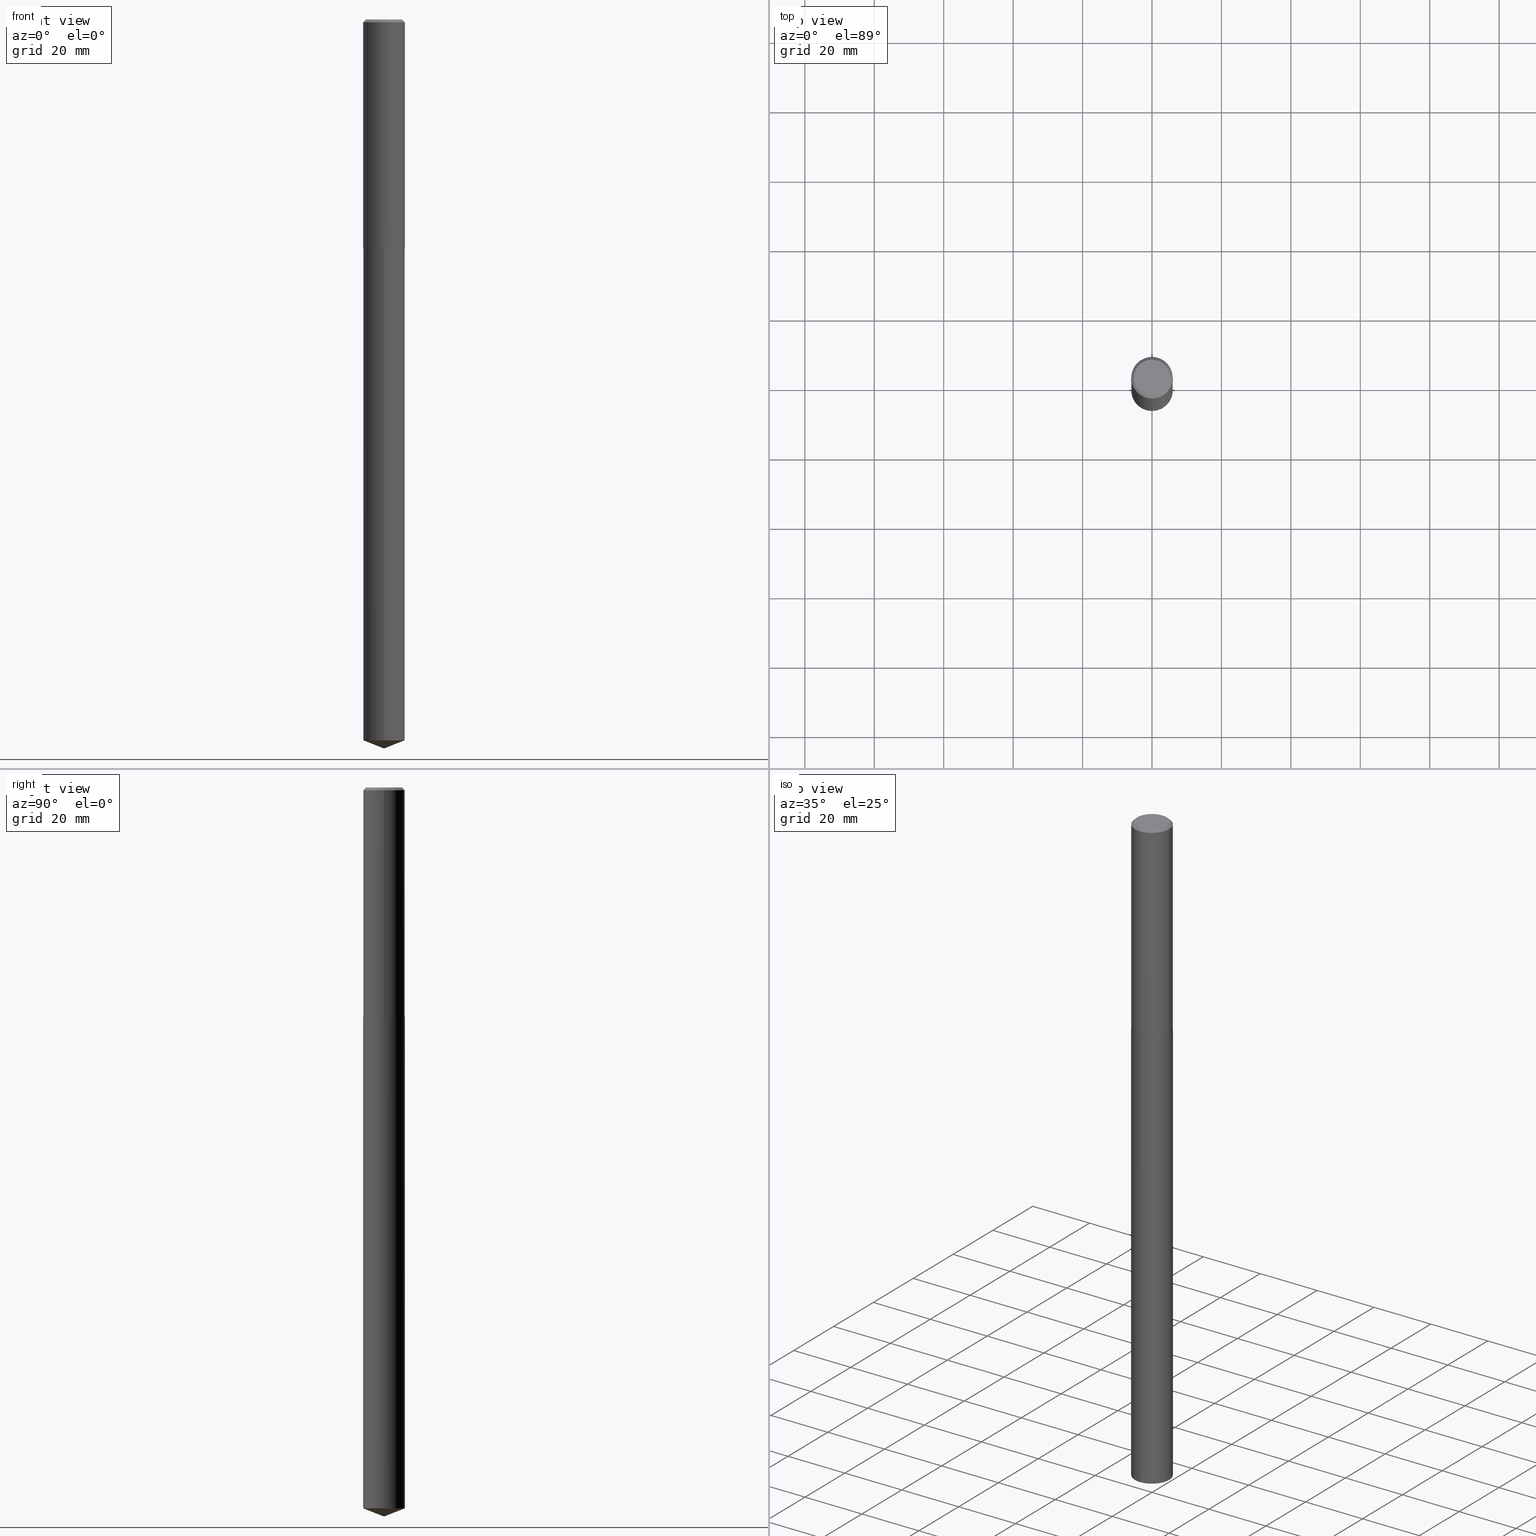
[diagram: canonical four-view strip — front | top / right | iso, engineering-drawing reading convention]
A machine part, canonical four-view strip (front | top / right | iso — engineering-drawing reading convention). The complete STEP part file that produces these views, byte-faithful:
ISO-10303-21;
HEADER;
FILE_DESCRIPTION (( 'STEP AP203' ),
    '1' );
FILE_NAME ('66799.STEP',
    '2024-04-23T12:51:47',
    ( '' ),
    ( '' ),
    'SwSTEP 2.0',
    'SolidWorks 2023',
    '' );
FILE_SCHEMA (( 'CONFIG_CONTROL_DESIGN' ));
ENDSEC;

DATA;
#1 = ORIENTED_EDGE ( 'NONE', *, *, #39, .F. ) ;
#2 = ORIENTED_EDGE ( 'NONE', *, *, #11, .T. ) ;
#3 = AXIS2_PLACEMENT_3D ( 'NONE', #315, #17, #16 ) ;
#4 = FACE_OUTER_BOUND ( 'NONE', #295, .T. ) ;
#5 = VERTEX_POINT ( 'NONE', #192 ) ;
#6 = ADVANCED_FACE ( 'NONE', ( #246 ), #37, .T. ) ;
#7 = DIRECTION ( 'NONE',  ( 1.000000000000000000, -6.982962677686266711E-15, 0.000000000000000000 ) ) ;
#8 = DIRECTION ( 'NONE',  ( 2.445468806185136597E-29, -3.491481338843145583E-15, -1.000000000000000000 ) ) ;
#9 = AXIS2_PLACEMENT_3D ( 'NONE', #100, #135, #102 ) ;
#10 = CARTESIAN_POINT ( 'NONE',  ( -7.606282247633711142E-28, 1.085870874670384931E-13, 31.10207874015748430 ) ) ;
#11 = EDGE_CURVE ( 'NONE', #272, #207, #186, .T. ) ;
#12 = CARTESIAN_POINT ( 'NONE',  ( 6.354795239752696204E-29, -9.072963407117799646E-15, -2.598599999999999799 ) ) ;
#13 = PLANE ( 'NONE',  #326 ) ;
#14 = AXIS2_PLACEMENT_3D ( 'NONE', #161, #221, #77 ) ;
#15 = AXIS2_PLACEMENT_3D ( 'NONE', #154, #119, #210 ) ;
#16 = DIRECTION ( 'NONE',  ( 1.000000000000000000, -6.982962677686266711E-15, 0.000000000000000000 ) ) ;
#17 = DIRECTION ( 'NONE',  ( -2.445468806185136597E-29, 3.491481338843145583E-15, 1.000000000000000000 ) ) ;
#18 = PRODUCT_DEFINITION_SHAPE ( 'NONE', 'NONE',  #64 ) ;
#19 = DIRECTION ( 'NONE',  ( 2.445468806185136597E-29, -3.491481338843145583E-15, -1.000000000000000000 ) ) ;
#20 = DIRECTION ( 'NONE',  ( -6.982962677686265922E-15, -1.000000000000000000, 4.626330217890369336E-15 ) ) ;
#21 = CONICAL_SURFACE ( 'NONE', #98, 0.2362000000000003264, 0.7853981633971751641 ) ;
#22 = LOCAL_TIME ( 8, 51, 47.00000000000000000, #276 ) ;
#23 = EDGE_CURVE ( 'NONE', #63, #5, #111, .T. ) ;
#24 = CARTESIAN_POINT ( 'NONE',  ( 6.354795239752696204E-29, -9.072963407117799646E-15, -2.598599999999999799 ) ) ;
#25 = CIRCLE ( 'NONE', #3, 0.2361999999999999933 ) ;
#26 = ORIENTED_EDGE ( 'NONE', *, *, #338, .T. ) ;
#27 = APPROVAL_DATE_TIME ( #243, #311 ) ;
#28 = ORIENTED_EDGE ( 'NONE', *, *, #250, .F. ) ;
#29 = ORIENTED_EDGE ( 'NONE', *, *, #165, .T. ) ;
#30 = DIRECTION ( 'NONE',  ( -6.982962677686266711E-15, -1.000000000000000000, 3.498627837350013689E-15 ) ) ;
#31 = VERTEX_POINT ( 'NONE', #164 ) ;
#32 = VECTOR ( 'NONE', #285, 39.37007874015748143 ) ;
#33 = CC_DESIGN_DATE_AND_TIME_ASSIGNMENT ( #328, #60, ( #64 ) ) ;
#34 = PERSON_AND_ORGANIZATION_ROLE ( 'design_supplier' ) ;
#35 = ORIENTED_EDGE ( 'NONE', *, *, #23, .T. ) ;
#36 = PERSON_AND_ORGANIZATION ( #256, #342 ) ;
#37 = CYLINDRICAL_SURFACE ( 'NONE', #209, 0.2362000000000001598 ) ;
#38 = CARTESIAN_POINT ( 'NONE',  ( 0.000000000000000000, 0.000000000000000000, 0.000000000000000000 ) ) ;
#39 = EDGE_CURVE ( 'NONE', #310, #272, #223, .T. ) ;
#40 = CLOSED_SHELL ( 'NONE', ( #93, #50, #314, #82, #180, #6, #321, #389 ) ) ;
#41 = LOCAL_TIME ( 8, 51, 47.00000000000000000, #247 ) ;
#42 = CARTESIAN_POINT ( 'NONE',  ( -0.2362000000000003264, -7.392915724583017804E-15, -2.598099999999999632 ) ) ;
#43 = DIRECTION ( 'NONE',  ( -2.445577382923198506E-29, 3.491325850774436813E-15, 1.000000000000000000 ) ) ;
#44 = CARTESIAN_POINT ( 'NONE',  ( 6.353572505349603403E-29, -9.071217666448377353E-15, -2.598099999999999632 ) ) ;
#45 = VECTOR ( 'NONE', #193, 39.37007874015748143 ) ;
#46 = CC_DESIGN_SECURITY_CLASSIFICATION ( #302, ( #293 ) ) ;
#47 = DIRECTION ( 'NONE',  ( -2.445468806185136597E-29, 3.491481338843145583E-15, 1.000000000000000000 ) ) ;
#48 = CARTESIAN_POINT ( 'NONE',  ( -0.2049499999999999933, 1.485712596711223663E-15, 4.818985154634640807E-18 ) ) ;
#49 = DIRECTION ( 'NONE',  ( -2.445577382923198506E-29, 3.491325850774436813E-15, 1.000000000000000000 ) ) ;
#50 = ADVANCED_FACE ( 'NONE', ( #218 ), #308, .T. ) ;
#51 = CARTESIAN_POINT ( 'NONE',  ( 7.642090019328603538E-31, -1.091087918388490390E-16, -0.03125000000000021511 ) ) ;
#52 = CIRCLE ( 'NONE', #361, 0.2362000000000003264 ) ;
#53 = DESIGN_CONTEXT ( 'detailed design', #89, 'design' ) ;
#54 = DIRECTION ( 'NONE',  ( 2.438088387897960049E-29, -3.491481338843145188E-15, -1.000000000000000000 ) ) ;
#55 = ORIENTED_EDGE ( 'NONE', *, *, #286, .F. ) ;
#56 = APPROVAL_ROLE ( '' ) ;
#57 = CLOSED_SHELL ( 'NONE', ( #204, #147, #358, #106, #329 ) ) ;
#58 = ORIENTED_EDGE ( 'NONE', *, *, #23, .F. ) ;
#59 =( GEOMETRIC_REPRESENTATION_CONTEXT ( 3 ) GLOBAL_UNCERTAINTY_ASSIGNED_CONTEXT ( ( #69 ) ) GLOBAL_UNIT_ASSIGNED_CONTEXT ( ( #355, #176, #322 ) ) REPRESENTATION_CONTEXT ( 'NONE', 'WORKASPACE' ) );
#60 = DATE_TIME_ROLE ( 'creation_date' ) ;
#61 = EDGE_LOOP ( 'NONE', ( #360, #94, #242, #1 ) ) ;
#62 = PERSON_AND_ORGANIZATION ( #256, #342 ) ;
#63 = VERTEX_POINT ( 'NONE', #166 ) ;
#64 = PRODUCT_DEFINITION ( 'UNKNOWN', '', #293, #53 ) ;
#65 = ORIENTED_EDGE ( 'NONE', *, *, #383, .T. ) ;
#66 = VECTOR ( 'NONE', #351, 39.37007874015748143 ) ;
#67 = APPROVAL_PERSON_ORGANIZATION ( #362, #353, #182 ) ;
#68 = SECURITY_CLASSIFICATION_LEVEL ( 'unclassified' ) ;
#69 = UNCERTAINTY_MEASURE_WITH_UNIT (LENGTH_MEASURE( 1.000000000000000082E-05 ), #355, 'distance_accuracy_value', 'NONE');
#70 = CARTESIAN_POINT ( 'NONE',  ( 7.642090019328603538E-31, -1.091087918388490390E-16, -0.03125000000000021511 ) ) ;
#71 = EDGE_CURVE ( 'NONE', #185, #265, #136, .T. ) ;
#72 = DATE_TIME_ROLE ( 'classification_date' ) ;
#73 = DIRECTION ( 'NONE',  ( -2.438088387897960049E-29, 3.491481338843145188E-15, 1.000000000000000000 ) ) ;
#74 = CYLINDRICAL_SURFACE ( 'NONE', #271, 0.2361999999999999933 ) ;
#75 = AXIS2_PLACEMENT_3D ( 'NONE', #24, #382, #107 ) ;
#76 = DIRECTION ( 'NONE',  ( -2.445468806185136597E-29, 3.491481338843145583E-15, 1.000000000000000000 ) ) ;
#77 = DIRECTION ( 'NONE',  ( 1.000000000000000000, -6.982962677686266711E-15, 4.876176775795936353E-29 ) ) ;
#78 = CC_DESIGN_PERSON_AND_ORGANIZATION_ASSIGNMENT ( #62, #116, ( #381 ) ) ;
#79 = CARTESIAN_POINT ( 'NONE',  ( -0.2362000000000001598, 1.678301941865357775E-15, -1.161852468318209598E-29 ) ) ;
#80 = LOCAL_TIME ( 8, 51, 47.00000000000000000, #296 ) ;
#81 = CARTESIAN_POINT ( 'NONE',  ( -1.178467787315321149E-46, 1.682539673960460649E-32, 4.818985154644839761E-18 ) ) ;
#82 = ADVANCED_FACE ( 'NONE', ( #280 ), #13, .F. ) ;
#83 = DIRECTION ( 'NONE',  ( 1.000000000000000000, -6.982962677686263555E-15, 0.000000000000000000 ) ) ;
#84 = CARTESIAN_POINT ( 'NONE',  ( 6.353572505349603403E-29, -9.071217666448377353E-15, -2.598099999999999632 ) ) ;
#85 = CARTESIAN_POINT ( 'NONE',  ( 2.022003875021026459E-28, -2.886628213420304436E-14, -8.268000000000000682 ) ) ;
#86 = ORIENTED_EDGE ( 'NONE', *, *, #383, .F. ) ;
#87 = EDGE_LOOP ( 'NONE', ( #269, #365, #96, #86 ) ) ;
#88 = COORDINATED_UNIVERSAL_TIME_OFFSET ( 5, 0, .BEHIND. ) ;
#89 = APPLICATION_CONTEXT ( 'configuration controlled 3d designs of mechanical parts and assemblies' ) ;
#90 = CIRCLE ( 'NONE', #233, 0.2357000000000004369 ) ;
#91 = ORIENTED_EDGE ( 'NONE', *, *, #270, .T. ) ;
#92 = APPROVAL_STATUS ( 'not_yet_approved' ) ;
#93 = ADVANCED_FACE ( 'NONE', ( #163 ), #224, .T. ) ;
#94 = ORIENTED_EDGE ( 'NONE', *, *, #220, .T. ) ;
#95 = APPROVAL_DATE_TIME ( #299, #353 ) ;
#96 = ORIENTED_EDGE ( 'NONE', *, *, #344, .T. ) ;
#97 = DIRECTION ( 'NONE',  ( -6.982962677686265922E-15, -1.000000000000000000, 4.626330217890369336E-15 ) ) ;
#98 = AXIS2_PLACEMENT_3D ( 'NONE', #44, #47, #83 ) ;
#99 = LOCAL_TIME ( 8, 51, 47.00000000000000000, #364 ) ;
#100 = CARTESIAN_POINT ( 'NONE',  ( 1.999221108897321029E-28, -2.854184745250146313E-14, -8.174958345659751657 ) ) ;
#101 = SHAPE_DEFINITION_REPRESENTATION ( #18, #304 ) ;
#102 = DIRECTION ( 'NONE',  ( -6.982962677686265922E-15, -1.000000000000000000, 4.626330217890369336E-15 ) ) ;
#103 = DIRECTION ( 'NONE',  ( -2.445468806185136597E-29, 3.491481338843145583E-15, 1.000000000000000000 ) ) ;
#104 = CIRCLE ( 'NONE', #125, 0.2049499999999999933 ) ;
#105 = CARTESIAN_POINT ( 'NONE',  ( -0.2361999999999999933, 1.540266992630647030E-15, -0.03125000000000021511 ) ) ;
#106 = ADVANCED_FACE ( 'NONE', ( #279 ), #74, .T. ) ;
#107 = DIRECTION ( 'NONE',  ( -6.982962677686265922E-15, -1.000000000000000000, 4.626330217890369336E-15 ) ) ;
#108 = ORIENTED_EDGE ( 'NONE', *, *, #220, .F. ) ;
#109 = CARTESIAN_POINT ( 'NONE',  ( -1.178467787315321149E-46, 1.682539673960460649E-32, 4.818985154644839761E-18 ) ) ;
#110 = EDGE_CURVE ( 'NONE', #310, #265, #52, .T. ) ;
#111 = CIRCLE ( 'NONE', #173, 0.2361999999999999933 ) ;
#112 = LOCAL_TIME ( 8, 51, 47.00000000000000000, #88 ) ;
#113 = CARTESIAN_POINT ( 'NONE',  ( -1.649375784469295957E-15, -0.2362000000000285538, -8.174958345659749881 ) ) ;
#114 = FACE_OUTER_BOUND ( 'NONE', #177, .T. ) ;
#115 = DIRECTION ( 'NONE',  ( -2.445468806185136597E-29, 3.491481338843145583E-15, 1.000000000000000000 ) ) ;
#116 = PERSON_AND_ORGANIZATION_ROLE ( 'design_owner' ) ;
#117 = PRODUCT_RELATED_PRODUCT_CATEGORY ( 'detail', '', ( #381 ) ) ;
#118 = ORIENTED_EDGE ( 'NONE', *, *, #194, .T. ) ;
#119 = DIRECTION ( 'NONE',  ( -2.445468806185136597E-29, 3.491481338843145583E-15, 1.000000000000000000 ) ) ;
#120 = ORIENTED_EDGE ( 'NONE', *, *, #261, .F. ) ;
#121 = LINE ( 'NONE', #387, #348 ) ;
#122 = ORIENTED_EDGE ( 'NONE', *, *, #153, .T. ) ;
#123 = EDGE_CURVE ( 'NONE', #185, #330, #90, .T. ) ;
#124 = PERSON_AND_ORGANIZATION ( #256, #342 ) ;
#125 = AXIS2_PLACEMENT_3D ( 'NONE', #109, #287, #227 ) ;
#126 = EDGE_LOOP ( 'NONE', ( #183, #29, #2, #356 ) ) ;
#127 = CARTESIAN_POINT ( 'NONE',  ( 0.000000000000000000, 0.000000000000000000, 0.000000000000000000 ) ) ;
#128 = VERTEX_POINT ( 'NONE', #343 ) ;
#129 = PERSON_AND_ORGANIZATION ( #256, #342 ) ;
#130 = CARTESIAN_POINT ( 'NONE',  ( 6.354795239752696204E-29, -9.072963407117799646E-15, -2.598599999999999799 ) ) ;
#131 = DATE_AND_TIME ( #190, #41 ) ;
#132 = DIRECTION ( 'NONE',  ( -2.445468806185136597E-29, 3.491481338843145583E-15, 1.000000000000000000 ) ) ;
#133 = CIRCLE ( 'NONE', #9, 0.2361999999999999933 ) ;
#134 = AXIS2_PLACEMENT_3D ( 'NONE', #320, #266, #30 ) ;
#135 = DIRECTION ( 'NONE',  ( -2.445577382923198506E-29, 3.491325850774436813E-15, 1.000000000000000000 ) ) ;
#136 = LINE ( 'NONE', #42, #277 ) ;
#137 = EDGE_CURVE ( 'NONE', #291, #207, #249, .T. ) ;
#138 = DIRECTION ( 'NONE',  ( 1.000000000000000000, -6.982962677686265922E-15, 4.876176775795935793E-29 ) ) ;
#139 = AXIS2_PLACEMENT_3D ( 'NONE', #84, #203, #260 ) ;
#140 = CARTESIAN_POINT ( 'NONE',  ( 0.2361999999999999933, -1.758484576308345231E-15, -0.03125000000000021511 ) ) ;
#141 = DIRECTION ( 'NONE',  ( -2.445577382923198787E-29, 3.491325850774436813E-15, 1.000000000000000000 ) ) ;
#142 = CC_DESIGN_PERSON_AND_ORGANIZATION_ASSIGNMENT ( #252, #34, ( #293 ) ) ;
#143 = FACE_OUTER_BOUND ( 'NONE', #297, .T. ) ;
#144 = VECTOR ( 'NONE', #189, 39.37007874015748143 ) ;
#145 = DIRECTION ( 'NONE',  ( -2.445468806185136597E-29, 3.491481338843145583E-15, 1.000000000000000000 ) ) ;
#146 = DIRECTION ( 'NONE',  ( 6.982962677686265922E-15, 1.000000000000000000, -3.491325850774436813E-15 ) ) ;
#147 = ADVANCED_FACE ( 'NONE', ( #369 ), #307, .T. ) ;
#148 = ORIENTED_EDGE ( 'NONE', *, *, #194, .F. ) ;
#149 = PERSON_AND_ORGANIZATION ( #256, #342 ) ;
#150 = EDGE_LOOP ( 'NONE', ( #267, #122, #26, #148 ) ) ;
#151 = PERSON_AND_ORGANIZATION_ROLE ( 'creator' ) ;
#152 = EDGE_LOOP ( 'NONE', ( #323, #235 ) ) ;
#153 = EDGE_CURVE ( 'NONE', #187, #237, #133, .T. ) ;
#154 = CARTESIAN_POINT ( 'NONE',  ( 6.353572505349603403E-29, -9.071217666448377353E-15, -2.598099999999999632 ) ) ;
#155 = ORIENTED_EDGE ( 'NONE', *, *, #371, .T. ) ;
#156 = DIRECTION ( 'NONE',  ( -2.445577382923198787E-29, 3.491325850774436813E-15, 1.000000000000000000 ) ) ;
#157 = AXIS2_PLACEMENT_3D ( 'NONE', #313, #145, #201 ) ;
#158 = ORIENTED_EDGE ( 'NONE', *, *, #261, .T. ) ;
#159 = APPROVAL_PERSON_ORGANIZATION ( #149, #311, #56 ) ;
#160 = ORIENTED_EDGE ( 'NONE', *, *, #250, .T. ) ;
#161 = CARTESIAN_POINT ( 'NONE',  ( 0.000000000000000000, 0.000000000000000000, 0.000000000000000000 ) ) ;
#162 = PERSON_AND_ORGANIZATION_ROLE ( 'classification_officer' ) ;
#163 = FACE_OUTER_BOUND ( 'NONE', #126, .T. ) ;
#164 = CARTESIAN_POINT ( 'NONE',  ( 2.022003380200900864E-28, -2.886628213420304436E-14, -8.268000000000000682 ) ) ;
#165 = EDGE_CURVE ( 'NONE', #128, #272, #340, .T. ) ;
#166 = CARTESIAN_POINT ( 'NONE',  ( -1.649375784469432430E-15, -0.2362000000000090694, -2.598599999999998911 ) ) ;
#167 = CARTESIAN_POINT ( 'NONE',  ( -0.2361999999999999933, -2.911861287278254072E-15, -0.03125000000000021511 ) ) ;
#168 = AXIS2_PLACEMENT_3D ( 'NONE', #372, #305, #7 ) ;
#169 = AXIS2_PLACEMENT_3D ( 'NONE', #380, #289, #146 ) ;
#170 = CARTESIAN_POINT ( 'NONE',  ( 2.021946950698595133E-28, -2.886709023679374212E-14, -8.268000000000000682 ) ) ;
#171 = DIRECTION ( 'NONE',  ( -6.497071151882117470E-15, -0.9304175679820243516, 0.3665012267242979127 ) ) ;
#172 = CARTESIAN_POINT ( 'NONE',  ( -0.2357000000000004369, -7.395564951757128216E-15, -2.598599999999999799 ) ) ;
#173 = AXIS2_PLACEMENT_3D ( 'NONE', #130, #43, #97 ) ;
#174 = DIRECTION ( 'NONE',  ( -1.000000000000000000, 6.982962677686266711E-15, 0.000000000000000000 ) ) ;
#175 = CC_DESIGN_PERSON_AND_ORGANIZATION_ASSIGNMENT ( #124, #151, ( #64 ) ) ;
#176 =( NAMED_UNIT ( * ) PLANE_ANGLE_UNIT ( ) SI_UNIT ( $, .RADIAN. ) );
#177 = EDGE_LOOP ( 'NONE', ( #91, #208, #245, #213 ) ) ;
#178 = CONICAL_SURFACE ( 'NONE', #134, 99.94676754583970535, 1.195550537616118625 ) ;
#179 = CALENDAR_DATE ( 2024, 23, 4 ) ;
#180 = ADVANCED_FACE ( 'NONE', ( #312 ), #21, .T. ) ;
#181 = ORIENTED_EDGE ( 'NONE', *, *, #244, .F. ) ;
#182 = APPROVAL_ROLE ( '' ) ;
#183 = ORIENTED_EDGE ( 'NONE', *, *, #230, .F. ) ;
#184 = CALENDAR_DATE ( 2024, 23, 4 ) ;
#185 = VERTEX_POINT ( 'NONE', #172 ) ;
#186 = CIRCLE ( 'NONE', #168, 0.2361999999999999933 ) ;
#187 = VERTEX_POINT ( 'NONE', #379 ) ;
#188 = CC_DESIGN_PERSON_AND_ORGANIZATION_ASSIGNMENT ( #129, #162, ( #302 ) ) ;
#189 = DIRECTION ( 'NONE',  ( -0.7071067811865451302, 2.468850131082231817E-15, -0.7071067811865499042 ) ) ;
#190 = CALENDAR_DATE ( 2024, 23, 4 ) ;
#191 = DIMENSIONAL_EXPONENTS ( 1.000000000000000000, 0.000000000000000000, 0.000000000000000000, 0.000000000000000000, 0.000000000000000000, 0.000000000000000000, 0.000000000000000000 ) ;
#192 = CARTESIAN_POINT ( 'NONE',  ( 1.678301941865557554E-15, 0.2361999999999909450, -2.598600000000001131 ) ) ;
#193 = DIRECTION ( 'NONE',  ( -2.445468806185136877E-29, 3.491481338843145188E-15, 1.000000000000000000 ) ) ;
#194 = EDGE_CURVE ( 'NONE', #5, #63, #240, .T. ) ;
#195 = AXIS2_PLACEMENT_3D ( 'NONE', #10, #196, #225 ) ;
#196 = DIRECTION ( 'NONE',  ( -2.445577382923198506E-29, 3.491325850774436813E-15, 1.000000000000000000 ) ) ;
#197 = DIRECTION ( 'NONE',  ( 0.7071067811865451302, -7.319954787623248157E-15, -0.7071067811865499042 ) ) ;
#198 = LINE ( 'NONE', #284, #199 ) ;
#199 = VECTOR ( 'NONE', #141, 39.37007874015748143 ) ;
#200 = AXIS2_PLACEMENT_3D ( 'NONE', #127, #359, #241 ) ;
#201 = DIRECTION ( 'NONE',  ( 1.000000000000000000, -6.982962677686269866E-15, 0.000000000000000000 ) ) ;
#202 = LINE ( 'NONE', #79, #66 ) ;
#203 = DIRECTION ( 'NONE',  ( -2.445468806185136597E-29, 3.491481338843145583E-15, 1.000000000000000000 ) ) ;
#204 = ADVANCED_FACE ( 'NONE', ( #384 ), #226, .T. ) ;
#205 = AXIS2_PLACEMENT_3D ( 'NONE', #316, #49, #282 ) ;
#206 = FACE_OUTER_BOUND ( 'NONE', #363, .T. ) ;
#207 = VERTEX_POINT ( 'NONE', #167 ) ;
#208 = ORIENTED_EDGE ( 'NONE', *, *, #71, .T. ) ;
#209 = AXIS2_PLACEMENT_3D ( 'NONE', #38, #132, #274 ) ;
#210 = DIRECTION ( 'NONE',  ( 1.000000000000000000, -6.982962677686263555E-15, 0.000000000000000000 ) ) ;
#211 = ORIENTED_EDGE ( 'NONE', *, *, #230, .T. ) ;
#212 = PLANE ( 'NONE',  #335 ) ;
#213 = ORIENTED_EDGE ( 'NONE', *, *, #344, .F. ) ;
#214 = PERSON_AND_ORGANIZATION ( #256, #342 ) ;
#215 = ORIENTED_EDGE ( 'NONE', *, *, #153, .F. ) ;
#216 = APPROVAL ( #273, 'UNSPECIFIED' ) ;
#217 = APPROVAL_PERSON_ORGANIZATION ( #36, #216, #254 ) ;
#218 = FACE_OUTER_BOUND ( 'NONE', #61, .T. ) ;
#219 = CARTESIAN_POINT ( 'NONE',  ( 6.353572505349603403E-29, -9.071217666448377353E-15, -2.598099999999999632 ) ) ;
#220 = EDGE_CURVE ( 'NONE', #265, #207, #202, .T. ) ;
#221 = DIRECTION ( 'NONE',  ( -2.445468806185136597E-29, 3.491481338843145583E-15, 1.000000000000000000 ) ) ;
#222 = DATE_AND_TIME ( #309, #22 ) ;
#223 = LINE ( 'NONE', #306, #45 ) ;
#224 = CONICAL_SURFACE ( 'NONE', #228, 0.2361999999999999933, 0.7853981633974449483 ) ;
#225 = DIRECTION ( 'NONE',  ( -6.982962677686266711E-15, -1.000000000000000000, 3.498627837350013689E-15 ) ) ;
#226 = CYLINDRICAL_SURFACE ( 'NONE', #205, 0.2361999999999999933 ) ;
#227 = DIRECTION ( 'NONE',  ( 1.000000000000000000, -6.982962677686266711E-15, 4.876118559169178830E-29 ) ) ;
#228 = AXIS2_PLACEMENT_3D ( 'NONE', #70, #8, #376 ) ;
#229 = DIRECTION ( 'NONE',  ( 1.000000000000000000, -6.982962677686266711E-15, 4.876118559169178830E-29 ) ) ;
#230 = EDGE_CURVE ( 'NONE', #128, #291, #104, .T. ) ;
#231 = CARTESIAN_POINT ( 'NONE',  ( 1.999221108897321029E-28, -2.854184745250146313E-14, -8.174958345659751657 ) ) ;
#232 = DIRECTION ( 'NONE',  ( 0.7071067811863543939, -2.468850131080234027E-15, 0.7071067811867406405 ) ) ;
#233 = AXIS2_PLACEMENT_3D ( 'NONE', #255, #76, #275 ) ;
#234 =( LENGTH_UNIT ( ) NAMED_UNIT ( * ) SI_UNIT ( $, .METRE. ) );
#235 = ORIENTED_EDGE ( 'NONE', *, *, #123, .F. ) ;
#236 = DIRECTION ( 'NONE',  ( -1.000000000000000000, 6.982962677686265922E-15, -4.876176775795935793E-29 ) ) ;
#237 = VERTEX_POINT ( 'NONE', #113 ) ;
#238 = MANIFOLD_SOLID_BREP ( 'Body-Move/Copy2[2]', #40 ) ;
#239 = ORIENTED_EDGE ( 'NONE', *, *, #286, .T. ) ;
#240 = CIRCLE ( 'NONE', #75, 0.2361999999999999933 ) ;
#241 = DIRECTION ( 'NONE',  ( 1.000000000000000000, 0.000000000000000000, 0.000000000000000000 ) ) ;
#242 = ORIENTED_EDGE ( 'NONE', *, *, #11, .F. ) ;
#243 = DATE_AND_TIME ( #179, #112 ) ;
#244 = EDGE_CURVE ( 'NONE', #237, #187, #248, .T. ) ;
#245 = ORIENTED_EDGE ( 'NONE', *, *, #110, .F. ) ;
#246 = FACE_OUTER_BOUND ( 'NONE', #300, .T. ) ;
#247 = COORDINATED_UNIVERSAL_TIME_OFFSET ( 5, 0, .BEHIND. ) ;
#248 = CIRCLE ( 'NONE', #318, 0.2361999999999999933 ) ;
#249 = LINE ( 'NONE', #105, #144 ) ;
#250 = EDGE_CURVE ( 'NONE', #291, #128, #341, .T. ) ;
#251 = ORIENTED_EDGE ( 'NONE', *, *, #298, .F. ) ;
#252 = PERSON_AND_ORGANIZATION ( #256, #342 ) ;
#253 = DIRECTION ( 'NONE',  ( -2.445577382923198506E-29, 3.491325850774436813E-15, 1.000000000000000000 ) ) ;
#254 = APPROVAL_ROLE ( '' ) ;
#255 = CARTESIAN_POINT ( 'NONE',  ( 6.354795239752696204E-29, -9.072963407117799646E-15, -2.598599999999999799 ) ) ;
#256 = PERSON ( 'UNSPECIFIED', 'UNSPECIFIED', 'UNSPECIFIED', ('UNSPECIFIED'), ('UNSPECIFIED'), ('UNSPECIFIED') ) ;
#257 = FACE_OUTER_BOUND ( 'NONE', #357, .T. ) ;
#258 = CC_DESIGN_PERSON_AND_ORGANIZATION_ASSIGNMENT ( #214, #339, ( #293 ) ) ;
#259 = LINE ( 'NONE', #170, #374 ) ;
#260 = DIRECTION ( 'NONE',  ( 1.000000000000000000, -6.982962677686263555E-15, 0.000000000000000000 ) ) ;
#261 = EDGE_CURVE ( 'NONE', #207, #272, #25, .T. ) ;
#262 = CARTESIAN_POINT ( 'NONE',  ( -0.2362000000000003264, -7.392915724583017804E-15, -2.598099999999999632 ) ) ;
#263 = LINE ( 'NONE', #350, #292 ) ;
#264 = ORIENTED_EDGE ( 'NONE', *, *, #298, .T. ) ;
#265 = VERTEX_POINT ( 'NONE', #262 ) ;
#266 = DIRECTION ( 'NONE',  ( -2.445577382923198506E-29, 3.491325850774436813E-15, 1.000000000000000000 ) ) ;
#267 = ORIENTED_EDGE ( 'NONE', *, *, #371, .F. ) ;
#268 = LENGTH_MEASURE_WITH_UNIT ( LENGTH_MEASURE( 0.02539999999999999897 ), #234 );
#269 = ORIENTED_EDGE ( 'NONE', *, *, #71, .F. ) ;
#270 = EDGE_CURVE ( 'NONE', #330, #185, #367, .T. ) ;
#271 = AXIS2_PLACEMENT_3D ( 'NONE', #12, #253, #370 ) ;
#272 = VERTEX_POINT ( 'NONE', #140 ) ;
#273 = APPROVAL_STATUS ( 'not_yet_approved' ) ;
#274 = DIRECTION ( 'NONE',  ( 1.000000000000000000, -6.982962677686266711E-15, 4.876176775795936353E-29 ) ) ;
#275 = DIRECTION ( 'NONE',  ( 1.000000000000000000, -6.982962677686269866E-15, 0.000000000000000000 ) ) ;
#276 = COORDINATED_UNIVERSAL_TIME_OFFSET ( 5, 0, .BEHIND. ) ;
#277 = VECTOR ( 'NONE', #366, 39.37007874015748143 ) ;
#278 = DIRECTION ( 'NONE',  ( 1.000000000000000000, -6.982962677686263555E-15, 0.000000000000000000 ) ) ;
#279 = FACE_OUTER_BOUND ( 'NONE', #150, .T. ) ;
#280 = FACE_OUTER_BOUND ( 'NONE', #152, .T. ) ;
#281 = CC_DESIGN_DATE_AND_TIME_ASSIGNMENT ( #222, #72, ( #302 ) ) ;
#282 = DIRECTION ( 'NONE',  ( -6.982962677686265922E-15, -1.000000000000000000, 4.626330217890369336E-15 ) ) ;
#283 = AXIS2_PLACEMENT_3D ( 'NONE', #81, #115, #229 ) ;
#284 = CARTESIAN_POINT ( 'NONE',  ( -1.649375784469432430E-15, -0.2362000000000090694, -2.598599999999998911 ) ) ;
#285 = DIRECTION ( 'NONE',  ( 6.611014441532064222E-15, 0.9304175679820269051, 0.3665012267242913624 ) ) ;
#286 = EDGE_CURVE ( 'NONE', #31, #237, #259, .T. ) ;
#287 = DIRECTION ( 'NONE',  ( -2.445468806185136597E-29, 3.491481338843145583E-15, 1.000000000000000000 ) ) ;
#288 = VECTOR ( 'NONE', #197, 39.37007874015748143 ) ;
#289 = DIRECTION ( 'NONE',  ( 2.445577382923198226E-29, -3.491325850774436813E-15, -1.000000000000000000 ) ) ;
#290 = APPLICATION_PROTOCOL_DEFINITION ( 'international standard', 'config_control_design', 1994, #378 ) ;
#291 = VERTEX_POINT ( 'NONE', #48 ) ;
#292 = VECTOR ( 'NONE', #232, 39.37007874015748143 ) ;
#293 = PRODUCT_DEFINITION_FORMATION_WITH_SPECIFIED_SOURCE ( 'ANY', '', #381, .NOT_KNOWN. ) ;
#294 = MECHANICAL_CONTEXT ( 'NONE', #378, 'mechanical' ) ;
#295 = EDGE_LOOP ( 'NONE', ( #160, #211 ) ) ;
#296 = COORDINATED_UNIVERSAL_TIME_OFFSET ( 5, 0, .BEHIND. ) ;
#297 = EDGE_LOOP ( 'NONE', ( #35, #118 ) ) ;
#298 = EDGE_CURVE ( 'NONE', #31, #187, #352, .T. ) ;
#299 = DATE_AND_TIME ( #184, #80 ) ;
#300 = EDGE_LOOP ( 'NONE', ( #108, #65, #333, #120 ) ) ;
#301 = CONICAL_SURFACE ( 'NONE', #139, 0.2362000000000003264, 0.7853981633971751641 ) ;
#302 = SECURITY_CLASSIFICATION ( '', '', #68 ) ;
#303 = ORIENTED_EDGE ( 'NONE', *, *, #244, .T. ) ;
#304 = ADVANCED_BREP_SHAPE_REPRESENTATION ( '66799', ( #373, #238, #200 ), #59 ) ;
#305 = DIRECTION ( 'NONE',  ( -2.445468806185136597E-29, 3.491481338843145583E-15, 1.000000000000000000 ) ) ;
#306 = CARTESIAN_POINT ( 'NONE',  ( 0.2362000000000001598, -1.649375784469497314E-15, 1.151752954443000929E-29 ) ) ;
#307 = CONICAL_SURFACE ( 'NONE', #195, 99.94676754583970535, 1.195550537616118625 ) ;
#308 = CYLINDRICAL_SURFACE ( 'NONE', #14, 0.2362000000000001598 ) ;
#309 = CALENDAR_DATE ( 2024, 23, 4 ) ;
#310 = VERTEX_POINT ( 'NONE', #317 ) ;
#311 = APPROVAL ( #324, 'UNSPECIFIED' ) ;
#312 = FACE_OUTER_BOUND ( 'NONE', #87, .T. ) ;
#313 = CARTESIAN_POINT ( 'NONE',  ( 6.354795239752696204E-29, -9.072963407117799646E-15, -2.598599999999999799 ) ) ;
#314 = ADVANCED_FACE ( 'NONE', ( #114 ), #301, .T. ) ;
#315 = CARTESIAN_POINT ( 'NONE',  ( 7.642090019328603538E-31, -1.091087918388490390E-16, -0.03125000000000021511 ) ) ;
#316 = CARTESIAN_POINT ( 'NONE',  ( 6.354795239752696204E-29, -9.072963407117799646E-15, -2.598599999999999799 ) ) ;
#317 = CARTESIAN_POINT ( 'NONE',  ( 0.2362000000000003264, -1.072059345091787388E-14, -2.598099999999999632 ) ) ;
#318 = AXIS2_PLACEMENT_3D ( 'NONE', #231, #347, #20 ) ;
#319 = CIRCLE ( 'NONE', #15, 0.2362000000000003264 ) ;
#320 = CARTESIAN_POINT ( 'NONE',  ( -7.606282247633711142E-28, 1.085870874670384931E-13, 31.10207874015748430 ) ) ;
#321 = ADVANCED_FACE ( 'NONE', ( #257 ), #354, .T. ) ;
#322 =( NAMED_UNIT ( * ) SI_UNIT ( $, .STERADIAN. ) SOLID_ANGLE_UNIT ( ) );
#323 = ORIENTED_EDGE ( 'NONE', *, *, #270, .F. ) ;
#324 = APPROVAL_STATUS ( 'not_yet_approved' ) ;
#325 = EDGE_LOOP ( 'NONE', ( #55, #264, #181 ) ) ;
#326 = AXIS2_PLACEMENT_3D ( 'NONE', #336, #73, #138 ) ;
#327 = CC_DESIGN_APPROVAL ( #311, ( #64 ) ) ;
#328 = DATE_AND_TIME ( #390, #99 ) ;
#329 = ADVANCED_FACE ( 'NONE', ( #143 ), #377, .F. ) ;
#330 = VERTEX_POINT ( 'NONE', #346 ) ;
#331 = CARTESIAN_POINT ( 'NONE',  ( -5.892338936576605744E-47, 8.412698369802303245E-33, 2.409492577322419881E-18 ) ) ;
#332 = ORIENTED_EDGE ( 'NONE', *, *, #338, .F. ) ;
#333 = ORIENTED_EDGE ( 'NONE', *, *, #39, .T. ) ;
#334 = AXIS2_PLACEMENT_3D ( 'NONE', #51, #19, #174 ) ;
#335 = AXIS2_PLACEMENT_3D ( 'NONE', #331, #54, #236 ) ;
#336 = CARTESIAN_POINT ( 'NONE',  ( 6.354795239752696204E-29, -9.072963407117799646E-15, -2.598599999999999799 ) ) ;
#337 = ORIENTED_EDGE ( 'NONE', *, *, #165, .F. ) ;
#338 = EDGE_CURVE ( 'NONE', #237, #63, #198, .T. ) ;
#339 = PERSON_AND_ORGANIZATION_ROLE ( 'creator' ) ;
#340 = LINE ( 'NONE', #345, #288 ) ;
#341 = CIRCLE ( 'NONE', #283, 0.2049499999999999933 ) ;
#342 = ORGANIZATION ( 'UNSPECIFIED', 'UNSPECIFIED', '' ) ;
#343 = CARTESIAN_POINT ( 'NONE',  ( 0.2049499999999999933, -1.567808741777880040E-15, 4.818985154655325294E-18 ) ) ;
#344 = EDGE_CURVE ( 'NONE', #330, #310, #263, .T. ) ;
#345 = CARTESIAN_POINT ( 'NONE',  ( 0.2361999999999999933, -1.729558418912484771E-15, -0.03125000000000021511 ) ) ;
#346 = CARTESIAN_POINT ( 'NONE',  ( 0.2357000000000004369, -1.071884771024845632E-14, -2.598599999999999799 ) ) ;
#347 = DIRECTION ( 'NONE',  ( -2.445577382923198506E-29, 3.491325850774436813E-15, 1.000000000000000000 ) ) ;
#348 = VECTOR ( 'NONE', #156, 39.37007874015748143 ) ;
#349 = CC_DESIGN_APPROVAL ( #216, ( #302 ) ) ;
#350 = CARTESIAN_POINT ( 'NONE',  ( 0.2362000000000003264, -1.072059345091787388E-14, -2.598099999999999632 ) ) ;
#351 = DIRECTION ( 'NONE',  ( -2.445468806185136877E-29, 3.491481338843145188E-15, 1.000000000000000000 ) ) ;
#352 = LINE ( 'NONE', #85, #32 ) ;
#353 = APPROVAL ( #92, 'UNSPECIFIED' ) ;
#354 = CONICAL_SURFACE ( 'NONE', #334, 0.2361999999999999933, 0.7853981633974449483 ) ;
#355 =( CONVERSION_BASED_UNIT ( 'INCH', #268 ) LENGTH_UNIT ( ) NAMED_UNIT ( #191 ) );
#356 = ORIENTED_EDGE ( 'NONE', *, *, #137, .F. ) ;
#357 = EDGE_LOOP ( 'NONE', ( #337, #28, #386, #158 ) ) ;
#358 = ADVANCED_FACE ( 'NONE', ( #206 ), #178, .T. ) ;
#359 = DIRECTION ( 'NONE',  ( 0.000000000000000000, 0.000000000000000000, 1.000000000000000000 ) ) ;
#360 = ORIENTED_EDGE ( 'NONE', *, *, #110, .T. ) ;
#361 = AXIS2_PLACEMENT_3D ( 'NONE', #219, #103, #278 ) ;
#362 = PERSON_AND_ORGANIZATION ( #256, #342 ) ;
#363 = EDGE_LOOP ( 'NONE', ( #251, #239, #215 ) ) ;
#364 = COORDINATED_UNIVERSAL_TIME_OFFSET ( 5, 0, .BEHIND. ) ;
#365 = ORIENTED_EDGE ( 'NONE', *, *, #123, .T. ) ;
#366 = DIRECTION ( 'NONE',  ( -0.7071067811863543939, 7.493145998869656807E-15, 0.7071067811867406405 ) ) ;
#367 = CIRCLE ( 'NONE', #157, 0.2357000000000004369 ) ;
#368 = APPROVAL_DATE_TIME ( #131, #216 ) ;
#369 = FACE_OUTER_BOUND ( 'NONE', #325, .T. ) ;
#370 = DIRECTION ( 'NONE',  ( -6.982962677686265922E-15, -1.000000000000000000, 4.626330217890369336E-15 ) ) ;
#371 = EDGE_CURVE ( 'NONE', #187, #5, #121, .T. ) ;
#372 = CARTESIAN_POINT ( 'NONE',  ( 7.642090019328603538E-31, -1.091087918388490390E-16, -0.03125000000000021511 ) ) ;
#373 = MANIFOLD_SOLID_BREP ( 'Body-Move/Copy2[1]', #57 ) ;
#374 = VECTOR ( 'NONE', #171, 39.37007874015748854 ) ;
#375 = CC_DESIGN_APPROVAL ( #353, ( #293 ) ) ;
#376 = DIRECTION ( 'NONE',  ( -1.000000000000000000, 6.982962677686266711E-15, 0.000000000000000000 ) ) ;
#377 = PLANE ( 'NONE',  #169 ) ;
#378 = APPLICATION_CONTEXT ( 'configuration controlled 3d designs of mechanical parts and assemblies' ) ;
#379 = CARTESIAN_POINT ( 'NONE',  ( 1.678301941865556370E-15, 0.2361999999999714606, -8.174958345659753434 ) ) ;
#380 = CARTESIAN_POINT ( 'NONE',  ( 6.354795239752696204E-29, -9.072963407117799646E-15, -2.598599999999999799 ) ) ;
#381 = PRODUCT ( '66799', '66799', '', ( #294 ) ) ;
#382 = DIRECTION ( 'NONE',  ( -2.445577382923198506E-29, 3.491325850774436813E-15, 1.000000000000000000 ) ) ;
#383 = EDGE_CURVE ( 'NONE', #265, #310, #319, .T. ) ;
#384 = FACE_OUTER_BOUND ( 'NONE', #388, .T. ) ;
#385 = APPLICATION_PROTOCOL_DEFINITION ( 'international standard', 'config_control_design', 1994, #89 ) ;
#386 = ORIENTED_EDGE ( 'NONE', *, *, #137, .T. ) ;
#387 = CARTESIAN_POINT ( 'NONE',  ( 1.678301941865419897E-15, 0.2361999999999909172, -2.598600000000001131 ) ) ;
#388 = EDGE_LOOP ( 'NONE', ( #303, #155, #58, #332 ) ) ;
#389 = ADVANCED_FACE ( 'NONE', ( #4 ), #212, .F. ) ;
#390 = CALENDAR_DATE ( 2024, 23, 4 ) ;
ENDSEC;
END-ISO-10303-21;
